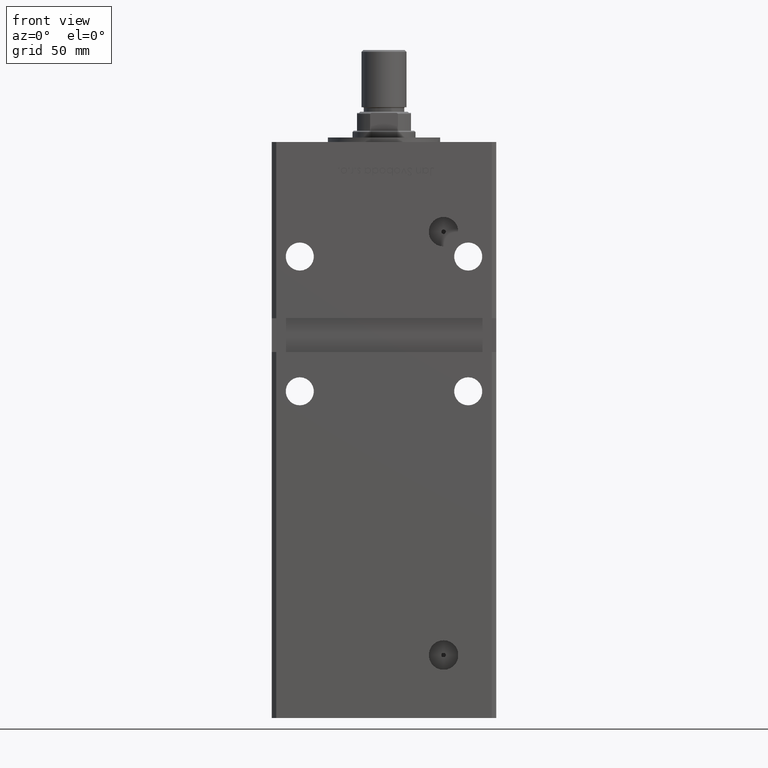
[diagram: clean part render]
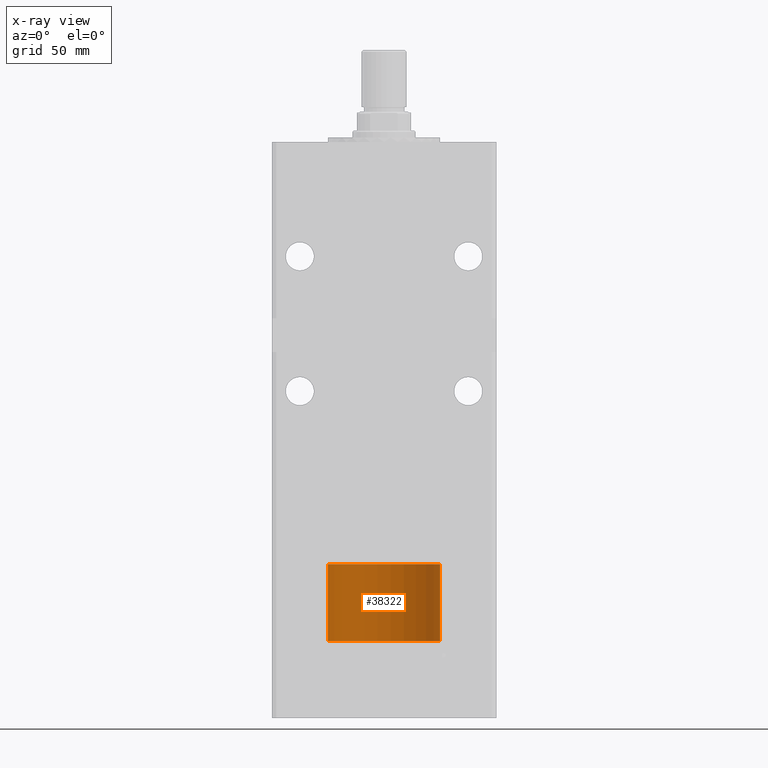
[diagram: x-ray — body ghosted, one internal face saturated and labeled with its STEP entity id]
A machine part, front view, then the same camera in x-ray: the body is ghosted and one INTERNAL B-rep face — a face not visible from any outside direction — is saturated and labeled: STEP entity #38322.
In plain terms, the highlighted cylindrical surface (partial cylindrical patch) has radius 25 mm, axis along (-0, -0, -1).
Its self-contained STEP definition (entity closure, byte-faithful):
#180 = VECTOR ( 'NONE', #26211, 1000.000000000000000 ) ;
#1076 = CARTESIAN_POINT ( 'NONE',  ( 0.000000000000000000, 0.000000000000000000, 34.25000000000000000 ) ) ;
#3214 = DIRECTION ( 'NONE',  ( 0.000000000000000000, 0.000000000000000000, 1.000000000000000000 ) ) ;
#5029 = DIRECTION ( 'NONE',  ( -0.000000000000000000, -0.000000000000000000, -1.000000000000000000 ) ) ;
#5060 = LINE ( 'NONE', #18341, #180 ) ;
#5313 = ORIENTED_EDGE ( 'NONE', *, *, #32627, .T. ) ;
#6976 = ORIENTED_EDGE ( 'NONE', *, *, #35555, .F. ) ;
#8589 = EDGE_CURVE ( 'NONE', #20041, #37570, #5060, .T. ) ;
#13358 = CIRCLE ( 'NONE', #21164, 25.00000000000000000 ) ;
#16674 = CARTESIAN_POINT ( 'NONE',  ( -25.00000000000000000, 0.000000000000000000, 0.000000000000000000 ) ) ;
#16989 = FACE_OUTER_BOUND ( 'NONE', #53644, .T. ) ;
#18341 = CARTESIAN_POINT ( 'NONE',  ( -25.00000000000000000, 0.000000000000000000, 34.25000000000000000 ) ) ;
#18925 = CARTESIAN_POINT ( 'NONE',  ( -25.00000000000000000, 0.000000000000000000, 34.25000000000000000 ) ) ;
#19570 = CARTESIAN_POINT ( 'NONE',  ( 25.00000000000000000, 3.061616997868383043E-15, 34.25000000000000000 ) ) ;
#20041 = VERTEX_POINT ( 'NONE', #18925 ) ;
#21164 = AXIS2_PLACEMENT_3D ( 'NONE', #27881, #3214, #23007 ) ;
#22117 = CYLINDRICAL_SURFACE ( 'NONE', #43730, 25.00000000000000000 ) ;
#22310 = ORIENTED_EDGE ( 'NONE', *, *, #8589, .F. ) ;
#23007 = DIRECTION ( 'NONE',  ( 1.000000000000000000, 0.000000000000000000, 0.000000000000000000 ) ) ;
#25109 = DIRECTION ( 'NONE',  ( -1.000000000000000000, 0.000000000000000000, 0.000000000000000000 ) ) ;
#25209 = CARTESIAN_POINT ( 'NONE',  ( 25.00000000000000000, 3.061616997868383043E-15, 0.000000000000000000 ) ) ;
#26211 = DIRECTION ( 'NONE',  ( -0.000000000000000000, -0.000000000000000000, -1.000000000000000000 ) ) ;
#26546 = DIRECTION ( 'NONE',  ( 0.000000000000000000, 0.000000000000000000, 1.000000000000000000 ) ) ;
#26767 = DIRECTION ( 'NONE',  ( -0.000000000000000000, -0.000000000000000000, -1.000000000000000000 ) ) ;
#27881 = CARTESIAN_POINT ( 'NONE',  ( 0.000000000000000000, 0.000000000000000000, 0.000000000000000000 ) ) ;
#30042 = LINE ( 'NONE', #39248, #31170 ) ;
#31170 = VECTOR ( 'NONE', #26767, 1000.000000000000000 ) ;
#32627 = EDGE_CURVE ( 'NONE', #46643, #37570, #13358, .T. ) ;
#35555 = EDGE_CURVE ( 'NONE', #51898, #20041, #36832, .T. ) ;
#36832 = CIRCLE ( 'NONE', #50642, 25.00000000000000000 ) ;
#37570 = VERTEX_POINT ( 'NONE', #16674 ) ;
#38322 = ADVANCED_FACE ( 'NONE', ( #16989 ), #22117, .T. ) ;
#39248 = CARTESIAN_POINT ( 'NONE',  ( 25.00000000000000000, 3.061616997868383043E-15, 34.25000000000000000 ) ) ;
#40589 = ORIENTED_EDGE ( 'NONE', *, *, #49606, .T. ) ;
#42441 = CARTESIAN_POINT ( 'NONE',  ( 0.000000000000000000, 0.000000000000000000, 34.25000000000000000 ) ) ;
#43730 = AXIS2_PLACEMENT_3D ( 'NONE', #42441, #5029, #25109 ) ;
#46332 = DIRECTION ( 'NONE',  ( 1.000000000000000000, 0.000000000000000000, 0.000000000000000000 ) ) ;
#46643 = VERTEX_POINT ( 'NONE', #25209 ) ;
#49606 = EDGE_CURVE ( 'NONE', #51898, #46643, #30042, .T. ) ;
#50642 = AXIS2_PLACEMENT_3D ( 'NONE', #1076, #26546, #46332 ) ;
#51898 = VERTEX_POINT ( 'NONE', #19570 ) ;
#53644 = EDGE_LOOP ( 'NONE', ( #6976, #40589, #5313, #22310 ) ) ;